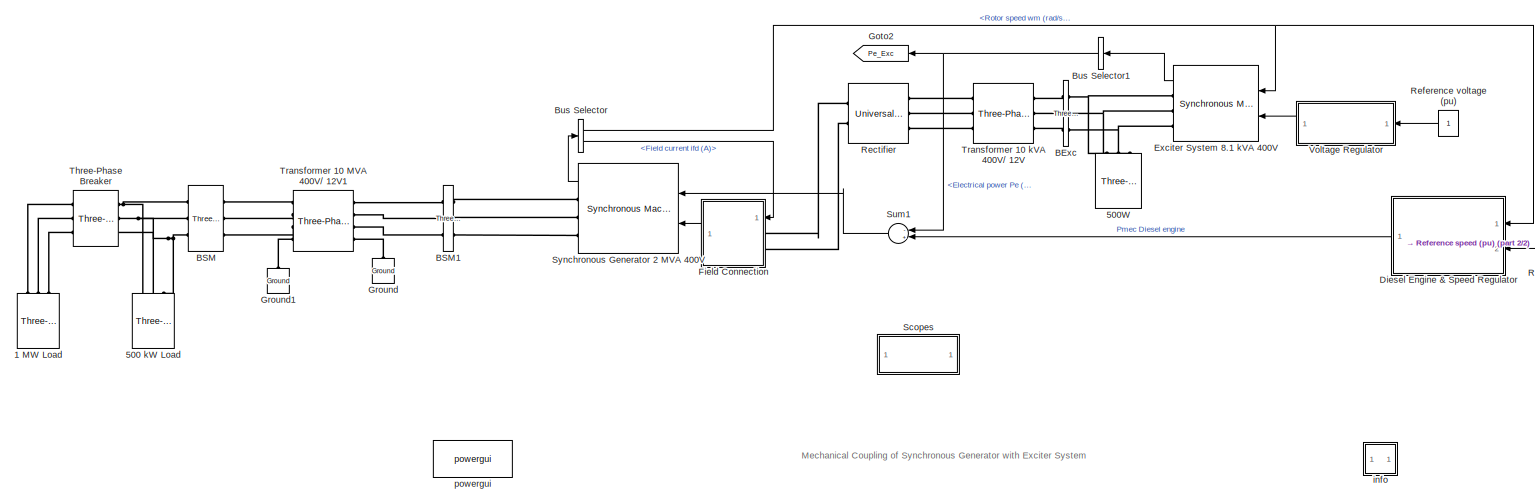
[diagram: root canvas - part 1/2, most of the canvas]
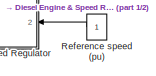
[diagram: root canvas - part 2/2, middle right region]
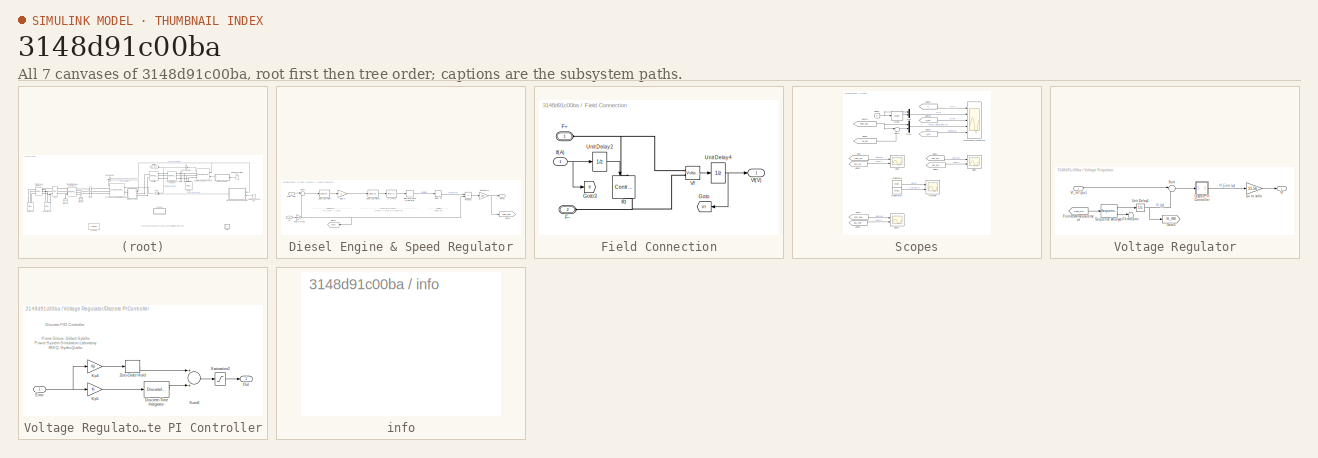
[diagram: thumbnail index - all 7 canvases of the model, root first then tree order]
MODEL slx_3148d91c00ba
KIND model
CONFIG AbsTol = auto
CONFIG FixedStep = auto
CONFIG InitFcn = Ts=50e-6;
CONFIG MaxStep = auto
CONFIG MinStep = auto
CONFIG PreLoadFcn = Ts=50e-6;
CONFIG RelTol = 1e-3
CONFIG SampleTimeConstraint = Unconstrained
CONFIG Solver = FixedStepDiscrete
CONFIG SolverMode = Auto
CONFIG SolverName = FixedStepDiscrete
CONFIG StartTime = 0.0
CONFIG StopTime = 10.0
BLOCK [Reference] 1 MW Load   REF=powerlib/Elements/Three-Phase
Parallel RLC Load
  AttributesFormatString = \n
  Ports = [0, 0, 0, 0, 0, 3]
  SourceBlock = powerlib/Elements/Three-Phase\nParallel RLC Load
  SourceType = Three-Phase Parallel RLC Load
BLOCK [Reference] 500 kW Load  REF=powerlib/Elements/Three-Phase
Parallel RLC Load
  AttributesFormatString = \n
  Ports = [0, 0, 0, 0, 0, 3]
  SourceBlock = powerlib/Elements/Three-Phase\nParallel RLC Load
  SourceType = Three-Phase Parallel RLC Load
BLOCK [Reference] 500W  REF=powerlib/Elements/Three-Phase
Parallel RLC Load
  AttributesFormatString = \n
  Ports = [0, 0, 0, 0, 0, 3]
  SourceBlock = powerlib/Elements/Three-Phase\nParallel RLC Load
  SourceType = Three-Phase Parallel RLC Load
BLOCK [Reference] BExc  REF=powerlib/Measurements/Three-Phase
V-I Measurement
  Ports = [0, 0, 0, 0, 0, 3, 3]
  SourceBlock = powerlib/Measurements/Three-Phase\nV-I Measurement
  SourceType = Three-Phase VI Measurement
BLOCK [Reference] BSM  REF=powerlib/Measurements/Three-Phase
V-I Measurement
  Ports = [0, 0, 0, 0, 0, 3, 3]
  SourceBlock = powerlib/Measurements/Three-Phase\nV-I Measurement
  SourceType = Three-Phase VI Measurement
BLOCK [Reference] BSM1  REF=powerlib/Measurements/Three-Phase
V-I Measurement
  Ports = [0, 0, 0, 0, 0, 3, 3]
  SourceBlock = powerlib/Measurements/Three-Phase\nV-I Measurement
  SourceType = Three-Phase VI Measurement
BLOCK [BusSelector] Bus Selector
  OutputSignals = Mechanical.Rotor speed  wm (rad/s),dq0 components.Field current  ifd (A)
  Ports = [1, 2]
BLOCK [BusSelector] Bus Selector1
  OutputSignals = Mechanical.Electrical power  Pe (W)
  Ports = [1, 1]
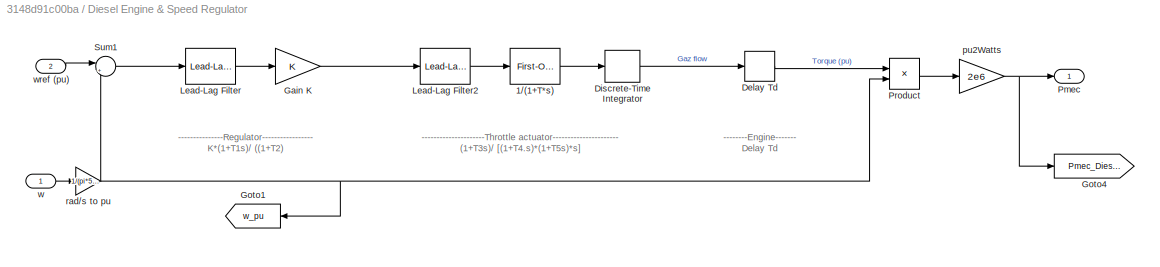
BLOCK [SubSystem] Diesel Engine & Speed Regulator
  Ports = [2, 1]
  RequestExecContextInheritance = off
  Variant = off
BLOCK [Reference] Diesel Engine & Speed Regulator/1//(1+T*s)  REF=powerlib_meascontrol/Filters/First-Order
Filter
  Ports = [1, 1]
  SourceBlock = powerlib_meascontrol/Filters/First-Order\nFilter
  SourceType = First-Order Filter
BLOCK [TransportDelay] Diesel Engine & Speed Regulator/Delay Td
  DelayTime = Td
  InitialOutput = Pm0
  Ports = [1, 1]
BLOCK [DiscreteIntegrator] Diesel Engine & Speed Regulator/Discrete-Time Integrator
  ICPrevOutput = DiscIntNeverNeededParam
  ICPrevScaledInput = DiscIntNeverNeededParam
  InitialCondition = Pm0
  LimitOutput = on
  LowerSaturationLimit = Tlim(1)
  Ports = [1, 1]
  SampleTime = Ts
  UpperSaturationLimit = Tlim(2)
BLOCK [Gain] Diesel Engine & Speed Regulator/Gain K
  Gain = K
BLOCK [Goto] Diesel Engine & Speed Regulator/Goto1
  GotoTag = w_pu
  TagVisibility = global
BLOCK [Goto] Diesel Engine & Speed Regulator/Goto4
  GotoTag = Pmec_Diesel
  TagVisibility = global
BLOCK [Reference] Diesel Engine & Speed Regulator/Lead-Lag Filter  REF=powerlib_meascontrol/Filters/Lead-Lag
Filter
  Ports = [1, 1]
  SourceBlock = powerlib_meascontrol/Filters/Lead-Lag\nFilter
  SourceType = Lead-Lag Filter
BLOCK [Reference] Diesel Engine & Speed Regulator/Lead-Lag Filter2  REF=powerlib_meascontrol/Filters/Lead-Lag
Filter
  Ports = [1, 1]
  SourceBlock = powerlib_meascontrol/Filters/Lead-Lag\nFilter
  SourceType = Lead-Lag Filter
BLOCK [Outport] Diesel Engine & Speed Regulator/Pmec
  IconDisplay = Port number
  InitialOutput = 0
BLOCK [Product] Diesel Engine & Speed Regulator/Product
  Ports = [2, 1]
  RndMeth = Floor
BLOCK [Sum] Diesel Engine & Speed Regulator/Sum1
  IconShape = round
  InputSameDT = off
  Inputs = |+-
  OutDataTypeStr = Inherit: Inherit via internal rule
  Ports = [2, 1]
BLOCK [Gain] Diesel Engine & Speed Regulator/pu2Watts
  Gain = 2e6
  OutDataTypeStr = Inherit: Inherit via internal rule
  ParamDataTypeStr = Inherit: Inherit via internal rule
  SaturateOnIntegerOverflow = off
BLOCK [Gain] Diesel Engine & Speed Regulator/rad//s to pu
  Gain = 1/(pi*50)
  OutDataTypeStr = Inherit: Inherit via internal rule
  ParamDataTypeStr = Inherit: Inherit via internal rule
  SaturateOnIntegerOverflow = off
BLOCK [Inport] Diesel Engine & Speed Regulator/w
  IconDisplay = Port number
BLOCK [Inport] Diesel Engine & Speed Regulator/wref (pu)
  IconDisplay = Port number
  Port = 2
BLOCK [Reference] Exciter System 8.1 kVA 400V  REF=powerlib/Machines/Synchronous Machine
SI Fundamental
  Ports = [2, 1, 0, 0, 0, 0, 3]
  SourceBlock = powerlib/Machines/Synchronous Machine\nSI Fundamental
  SourceType = Synchronous Machine
BLOCK [SubSystem] Field Connection
  Ports = [1, 1, 0, 0, 0, 2]
  RequestExecContextInheritance = off
  Variant = off
BLOCK [PMIOPort] Field Connection/F+
  Port = 1
  Side = Left
BLOCK [PMIOPort] Field Connection/F-
  Port = 2
  Side = Left
BLOCK [Goto] Field Connection/Goto
  GotoTag = Vf
  TagVisibility = global
BLOCK [Goto] Field Connection/Goto3
  GotoTag = If
  TagVisibility = global
BLOCK [Inport] Field Connection/If(A)
  IconDisplay = Port number
BLOCK [Reference] Field Connection/Ifd  REF=powerlib/Electrical
Sources/Controlled Current Source
  Ports = [1, 0, 0, 0, 0, 1, 1]
  SourceBlock = powerlib/Electrical\nSources/Controlled Current Source
  SourceType = Controlled Current Source
BLOCK [UnitDelay] Field Connection/Unit Delay2
  InitialCondition = 1.1254*100
  SampleTime = Ts
BLOCK [UnitDelay] Field Connection/Unit Delay4
  InitialCondition = 10.4482
  SampleTime = Ts
BLOCK [Reference] Field Connection/Vf   REF=powerlib/Measurements/Voltage Measurement
  Ports = [0, 1, 0, 0, 0, 2]
  SourceBlock = powerlib/Measurements/Voltage Measurement
  SourceType = Voltage Measurement
BLOCK [Outport] Field Connection/Vf(V)
  IconDisplay = Port number
BLOCK [Goto] Goto2
  GotoTag = Pe_Exc
  TagVisibility = global
BLOCK [Reference] Ground  REF=powerlib/Elements/Ground
  Ports = [0, 0, 0, 0, 0, 1]
  SourceBlock = powerlib/Elements/Ground
  SourceType = Ground
BLOCK [Reference] Ground1  REF=powerlib/Elements/Ground
  Ports = [0, 0, 0, 0, 0, 1]
  SourceBlock = powerlib/Elements/Ground
  SourceType = Ground
BLOCK [Reference] Rectifier  REF=powerlib/Power
Electronics/Universal Bridge
  Ports = [0, 0, 0, 0, 0, 3, 2]
  SourceBlock = powerlib/Power\nElectronics/Universal Bridge
  SourceType = Universal Bridge
BLOCK [Constant] Reference speed (pu)
BLOCK [Constant] Reference voltage (pu)
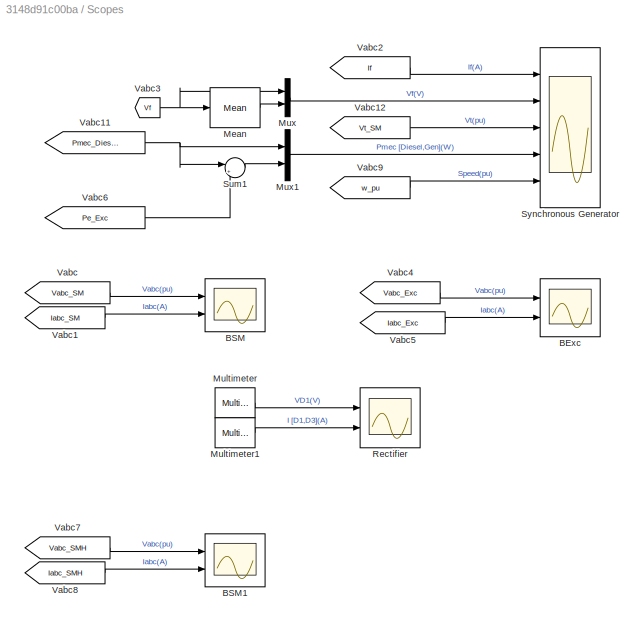
BLOCK [SubSystem] Scopes
  Ports = []
  RequestExecContextInheritance = off
  Variant = off
BLOCK [Scope] Scopes/ BSM
  NumInputPorts = 2
  Ports = [2]
  ScopeSpecificationString = Simulink.scopes.TimeScopeBlockCfg('CurrentConfiguration', extmgr.ConfigurationSet(extmgr.Configuration('Core','General UI',true),extmgr.Configuration('Core','Source UI',true),extmgr.Configuration('Sources','WiredSimulink',true,'DataLoggingSaveFormat','Array','DataLoggingDecimation','1','DataLoggingDecimateData',true),extmgr.Configuration('Visuals','Time Domain',true,'SerializedDisplays',{struct('M...<+2339ch>
BLOCK [Scope] Scopes/ BSM1
  NumInputPorts = 2
  Ports = [2]
  ScopeSpecificationString = Simulink.scopes.TimeScopeBlockCfg('CurrentConfiguration', extmgr.ConfigurationSet(extmgr.Configuration('Core','General UI',true),extmgr.Configuration('Core','Source UI',true),extmgr.Configuration('Sources','WiredSimulink',true,'DataLoggingSaveFormat','Array','DataLoggingDecimation','1','DataLoggingDecimateData',true,'DataLoggingVariableName','ScopeData1'),extmgr.Configuration('Visuals','Time Domai...<+2410ch>
BLOCK [Scope] Scopes/ Rectifier
  NumInputPorts = 2
  Ports = [2]
  ScopeSpecificationString = C++SS(StrPVP('Location','[188, 365, 512, 604]'),StrPVP('Open','off'),MxPVP('AxesTitles',24,'struct(''axes1'',''%<SignalLabel>'',''axes2'',''%<SignalLabel>'')'),StrPVP('ShowLegends','off'),StrPVP('LimitDataPoints','off'),StrPVP('DataFormat','Array'),StrPVP('Decimation','1'),StrPVP('BlockParamSampleInput','off'))
BLOCK [Scope] Scopes/BExc
  NumInputPorts = 2
  Ports = [2]
  ScopeSpecificationString = C++SS(StrPVP('Location','[188, 365, 512, 604]'),StrPVP('Open','off'),MxPVP('AxesTitles',24,'struct(''axes1'',''%<SignalLabel>'',''axes2'',''%<SignalLabel>'')'),StrPVP('ShowLegends','off'),StrPVP('LimitDataPoints','off'),StrPVP('DataFormat','Array'),StrPVP('Decimation','1'),StrPVP('BlockParamSampleInput','off'))
BLOCK [Reference] Scopes/Mean  REF=powerlib_meascontrol/Measurements/Mean
  Ports = [1, 1]
  SourceBlock = powerlib_meascontrol/Measurements/Mean
  SourceType = Mean
BLOCK [Reference] Scopes/Multimeter  REF=powerlib/Measurements/Multimeter
  Ports = [0, 1]
  SourceBlock = powerlib/Measurements/Multimeter
  SourceType = MultimeterPSB
BLOCK [Reference] Scopes/Multimeter1  REF=powerlib/Measurements/Multimeter
  Ports = [0, 1]
  SourceBlock = powerlib/Measurements/Multimeter
  SourceType = MultimeterPSB
BLOCK [Mux] Scopes/Mux
  DisplayOption = bar
  Inputs = 2
  Ports = [2, 1]
BLOCK [Mux] Scopes/Mux1
  DisplayOption = bar
  Inputs = 2
  Ports = [2, 1]
BLOCK [Sum] Scopes/Sum1
  IconShape = round
  InputSameDT = off
  Inputs = |+-
  OutDataTypeStr = Inherit: Inherit via internal rule
  Ports = [2, 1]
  SaturateOnIntegerOverflow = off
BLOCK [Scope] Scopes/Synchronous Generator
  NumInputPorts = 5
  Ports = [5]
  ScopeSpecificationString = Simulink.scopes.TimeScopeBlockCfg('CurrentConfiguration', extmgr.ConfigurationSet(extmgr.Configuration('Core','General UI',true),extmgr.Configuration('Core','Source UI',true),extmgr.Configuration('Sources','WiredSimulink',true,'DataLoggingSaveFormat','Array','DataLoggingDecimation','1','DataLoggingDecimateData',true),extmgr.Configuration('Visuals','Time Domain',true,'SerializedDisplays',{struct('M...<+6449ch>
BLOCK [From] Scopes/Vabc
  CloseFcn = tagdialog Close
  GotoTag = Vabc_SM
  TagVisibility = global
BLOCK [From] Scopes/Vabc1
  CloseFcn = tagdialog Close
  GotoTag = Iabc_SM
  TagVisibility = global
BLOCK [From] Scopes/Vabc11
  CloseFcn = tagdialog Close
  GotoTag = Pmec_Diesel
  TagVisibility = global
BLOCK [From] Scopes/Vabc12
  CloseFcn = tagdialog Close
  GotoTag = Vt_SM
  TagVisibility = global
BLOCK [From] Scopes/Vabc2
  CloseFcn = tagdialog Close
  GotoTag = If
  TagVisibility = global
BLOCK [From] Scopes/Vabc3
  CloseFcn = tagdialog Close
  GotoTag = Vf
  TagVisibility = global
BLOCK [From] Scopes/Vabc4
  CloseFcn = tagdialog Close
  GotoTag = Vabc_Exc
  TagVisibility = global
BLOCK [From] Scopes/Vabc5
  CloseFcn = tagdialog Close
  GotoTag = Iabc_Exc
  TagVisibility = global
BLOCK [From] Scopes/Vabc6
  CloseFcn = tagdialog Close
  GotoTag = Pe_Exc
  TagVisibility = global
BLOCK [From] Scopes/Vabc7
  CloseFcn = tagdialog Close
  GotoTag = Vabc_SMH
  TagVisibility = global
BLOCK [From] Scopes/Vabc8
  CloseFcn = tagdialog Close
  GotoTag = Iabc_SMH
  TagVisibility = global
BLOCK [From] Scopes/Vabc9
  CloseFcn = tagdialog Close
  GotoTag = w_pu
  TagVisibility = global
BLOCK [Sum] Sum1
  InputSameDT = off
  Inputs = -+
  OutDataTypeStr = Inherit: Inherit via internal rule
  Ports = [2, 1]
  SaturateOnIntegerOverflow = off
BLOCK [Reference] Synchronous Generator 2 MVA 400V  REF=powerlib/Machines/Synchronous Machine
SI Fundamental
  Ports = [2, 1, 0, 0, 0, 0, 3]
  SourceBlock = powerlib/Machines/Synchronous Machine\nSI Fundamental
  SourceType = Synchronous Machine
BLOCK [Reference] Three-Phase Breaker  REF=powerlib/Elements/Three-Phase Breaker
  Ports = [0, 0, 0, 0, 0, 3, 3]
  SourceBlock = powerlib/Elements/Three-Phase Breaker
  SourceType = Three-Phase Breaker
BLOCK [Reference] Transformer 10 MVA 400V// 12V1  REF=powerlib/Elements/Three-Phase
Transformer
(Two Windings)
  Ports = [0, 0, 0, 0, 0, 4, 4]
  SourceBlock = powerlib/Elements/Three-Phase\nTransformer\n(Two Windings)
  SourceType = Three-Phase Transformer (Two Windings)
BLOCK [Reference] Transformer 10 kVA 400V// 12V  REF=powerlib/Elements/Three-Phase
Transformer
(Two Windings)
  Ports = [0, 0, 0, 0, 0, 3, 3]
  SourceBlock = powerlib/Elements/Three-Phase\nTransformer\n(Two Windings)
  SourceType = Three-Phase Transformer (Two Windings)
BLOCK [SubSystem] Voltage Regulator
  Ports = [1, 1]
  RequestExecContextInheritance = off
  Variant = off
BLOCK [SubSystem] Voltage Regulator/Discrete PI Controller
  DialogController = POWERSYS.PowerSysDialog
  Ports = [1, 1]
  RequestExecContextInheritance = off
  Variant = off
BLOCK [DiscreteIntegrator] Voltage Regulator/Discrete PI Controller/Discrete-Time Integrator
  ICPrevOutput = DiscIntNeverNeededParam
  ICPrevScaledInput = DiscIntNeverNeededParam
  InitialCondition = Init
  LimitOutput = on
  LowerSaturationLimit = LowerLimit
  Ports = [1, 1]
  SampleTime = Ts
  UpperSaturationLimit = UpperLimit
BLOCK [Inport] Voltage Regulator/Discrete PI Controller/Error
  IconDisplay = Port number
  SampleTime = Ts
BLOCK [Gain] Voltage Regulator/Discrete PI Controller/Kp4
  Gain = Kp
  SampleTime = Ts
BLOCK [Gain] Voltage Regulator/Discrete PI Controller/Kp5
  Gain = Ki
  SampleTime = Ts
BLOCK [Outport] Voltage Regulator/Discrete PI Controller/Out
  IconDisplay = Port number
  InitialOutput = 0
  SampleTime = Ts
BLOCK [Saturate] Voltage Regulator/Discrete PI Controller/Saturation2
  InputPortMap = u0
  LowerLimit = LowerLimit
  Ports = [1, 1]
  SampleTime = Ts
  UpperLimit = UpperLimit
BLOCK [Sum] Voltage Regulator/Discrete PI Controller/Sum6
  Ports = [2, 1]
  SampleTime = Ts
BLOCK [ZeroOrderHold] Voltage Regulator/Discrete PI Controller/Zero-Order Hold
  SampleTime = Ts
BLOCK [From] Voltage Regulator/From BSM measurement
  CloseFcn = tagdialog Close
  GotoTag = Vabc_SM
  TagVisibility = global
BLOCK [Goto] Voltage Regulator/Goto3
  GotoTag = Vt_SM
  TagVisibility = global
BLOCK [Reference] Voltage Regulator/Sequence Analyzer  REF=powerlib_meascontrol/Measurements/Sequence Analyzer
  Ports = [1, 2]
  SourceBlock = powerlib_meascontrol/Measurements/Sequence Analyzer
  SourceType = Sequence Analyzer
BLOCK [Sum] Voltage Regulator/Sum
  IconShape = round
  InputSameDT = off
  Inputs = |+-
  OutDataTypeStr = Inherit: Inherit via internal rule
  Ports = [2, 1]
  SaturateOnIntegerOverflow = off
BLOCK [Terminator] Voltage Regulator/Terminator
BLOCK [UnitDelay] Voltage Regulator/Unit Delay1
  InitialCondition = 1
  SampleTime = Ts
BLOCK [Outport] Voltage Regulator/Vf
  IconDisplay = Port number
BLOCK [Inport] Voltage Regulator/Vt_ref (pu)
  IconDisplay = Port number
BLOCK [Gain] Voltage Regulator/pu to volts
  Gain = 11.56
  OutDataTypeStr = Inherit: Inherit via internal rule
  ParamDataTypeStr = Inherit: Inherit via internal rule
  SaturateOnIntegerOverflow = off
BLOCK [SubSystem] info
  OpenFcn = showdemo(bdroot(gcb))
  Ports = []
  RequestExecContextInheritance = off
  Variant = off
BLOCK [Reference] powergui  REF=powerlib/powergui
  Ports = []
  SourceBlock = powerlib/powergui
  SourceType = PSB option menu block
  UserDataPersistent = on
ANNOTATION (root): Mechanical Coupling of Synchronous Generator with Exciter System
ANNOTATION Diesel Engine & Speed Regulator: ---------------------Throttle actuator---------------------- (1+T3s)/ [(1+T4.s)*(1+T5s)*s]
ANNOTATION Diesel Engine & Speed Regulator: ---------------Regulator----------------- K*(1+T1s)/ ((1+T2)
ANNOTATION Diesel Engine & Speed Regulator: --------Engine------- Delay Td
ANNOTATION Voltage Regulator/Discrete PI Controller: Discrete PID Controller
ANNOTATION Voltage Regulator/Discrete PI Controller: Pierre Giroux, Gilbert Sybille Power System Simulation Laboratory IREQ, Hydro-Quebc
NET Bus Selector1:1 -> Goto2:1, Sum1:1
NET Bus Selector:1 -> Diesel Engine & Speed Regulator:1, Exciter System 8.1 kVA 400V:1
LINE Bus Selector:2 -> Field Connection:1
LINE Diesel Engine & Speed Regulator/1//(1+T*s):1 -> Diesel Engine & Speed Regulator/Discrete-Time Integrator:1
LINE Diesel Engine & Speed Regulator/Delay Td:1 -> Diesel Engine & Speed Regulator/Product:1
LINE Diesel Engine & Speed Regulator/Discrete-Time Integrator:1 -> Diesel Engine & Speed Regulator/Delay Td:1
LINE Diesel Engine & Speed Regulator/Gain K:1 -> Diesel Engine & Speed Regulator/Lead-Lag Filter2:1
LINE Diesel Engine & Speed Regulator/Lead-Lag Filter2:1 -> Diesel Engine & Speed Regulator/1//(1+T*s):1
LINE Diesel Engine & Speed Regulator/Lead-Lag Filter:1 -> Diesel Engine & Speed Regulator/Gain K:1
LINE Diesel Engine & Speed Regulator/Product:1 -> Diesel Engine & Speed Regulator/pu2Watts:1
LINE Diesel Engine & Speed Regulator/Sum1:1 -> Diesel Engine & Speed Regulator/Lead-Lag Filter:1
NET Diesel Engine & Speed Regulator/pu2Watts:1 -> Diesel Engine & Speed Regulator/Goto4:1, Diesel Engine & Speed Regulator/Pmec:1
NET Diesel Engine & Speed Regulator/rad//s to pu:1 -> Diesel Engine & Speed Regulator/Goto1:1, Diesel Engine & Speed Regulator/Product:2, Diesel Engine & Speed Regulator/Sum1:2
LINE Diesel Engine & Speed Regulator/w:1 -> Diesel Engine & Speed Regulator/rad//s to pu:1
LINE Diesel Engine & Speed Regulator/wref (pu):1 -> Diesel Engine & Speed Regulator/Sum1:1
LINE Diesel Engine & Speed Regulator:1 -> Sum1:2
LINE Exciter System 8.1 kVA 400V:1 -> Bus Selector1:1
NET Field Connection/If(A):1 -> Field Connection/Goto3:1, Field Connection/Unit Delay2:1
LINE Field Connection/Unit Delay2:1 -> Field Connection/Ifd:1
NET Field Connection/Unit Delay4:1 -> Field Connection/Goto:1, Field Connection/Vf(V):1
LINE Field Connection/Vf :1 -> Field Connection/Unit Delay4:1
LINE Field Connection:1 -> Synchronous Generator 2 MVA 400V:2
LINE Reference speed (pu):1 -> Diesel Engine & Speed Regulator:2
LINE Reference voltage (pu):1 -> Voltage Regulator:1
LINE Scopes/Mean:1 -> Scopes/Mux:2
LINE Scopes/Multimeter1:1 -> Scopes/ Rectifier:2
LINE Scopes/Multimeter:1 -> Scopes/ Rectifier:1
LINE Scopes/Mux1:1 -> Scopes/Synchronous Generator:4
LINE Scopes/Mux:1 -> Scopes/Synchronous Generator:2
LINE Scopes/Sum1:1 -> Scopes/Mux1:2
NET Scopes/Vabc11:1 -> Scopes/Mux1:1, Scopes/Sum1:1
LINE Scopes/Vabc12:1 -> Scopes/Synchronous Generator:3
LINE Scopes/Vabc1:1 -> Scopes/ BSM:2
LINE Scopes/Vabc2:1 -> Scopes/Synchronous Generator:1
NET Scopes/Vabc3:1 -> Scopes/Mean:1, Scopes/Mux:1
LINE Scopes/Vabc4:1 -> Scopes/BExc:1
LINE Scopes/Vabc5:1 -> Scopes/BExc:2
LINE Scopes/Vabc6:1 -> Scopes/Sum1:2
LINE Scopes/Vabc7:1 -> Scopes/ BSM1:1
LINE Scopes/Vabc8:1 -> Scopes/ BSM1:2
LINE Scopes/Vabc9:1 -> Scopes/Synchronous Generator:5
LINE Scopes/Vabc:1 -> Scopes/ BSM:1
LINE Sum1:1 -> Synchronous Generator 2 MVA 400V:1
LINE Synchronous Generator 2 MVA 400V:1 -> Bus Selector:1
LINE Voltage Regulator/Discrete PI Controller:1 -> Voltage Regulator/pu to volts:1
LINE Voltage Regulator/From BSM measurement:1 -> Voltage Regulator/Sequence Analyzer:1
LINE Voltage Regulator/Sequence Analyzer:1 -> Voltage Regulator/Unit Delay1:1
LINE Voltage Regulator/Sequence Analyzer:2 -> Voltage Regulator/Terminator:1
LINE Voltage Regulator/Sum:1 -> Voltage Regulator/Discrete PI Controller:1
NET Voltage Regulator/Unit Delay1:1 -> Voltage Regulator/Goto3:1, Voltage Regulator/Sum:2
LINE Voltage Regulator/Vt_ref (pu):1 -> Voltage Regulator/Sum:1
LINE Voltage Regulator/pu to volts:1 -> Voltage Regulator/Vf:1
LINE Voltage Regulator:1 -> Exciter System 8.1 kVA 400V:2
PLINE 1 MW Load :LConn1 -- Three-Phase Breaker:LConn1
PLINE 1 MW Load :LConn2 -- Three-Phase Breaker:LConn2
PLINE 1 MW Load :LConn3 -- Three-Phase Breaker:LConn3
PNET net1: 500 kW Load:LConn1 -- BSM:RConn1 -- Three-Phase Breaker:RConn1
PNET net2: 500 kW Load:LConn2 -- BSM:RConn2 -- Three-Phase Breaker:RConn2
PNET net3: 500 kW Load:LConn3 -- BSM:RConn3 -- Three-Phase Breaker:RConn3
PNET net4: 500W:LConn1 -- BExc:LConn1 -- Exciter System 8.1 kVA 400V:RConn1
PNET net5: 500W:LConn2 -- BExc:LConn2 -- Exciter System 8.1 kVA 400V:RConn2
PNET net6: 500W:LConn3 -- BExc:LConn3 -- Exciter System 8.1 kVA 400V:RConn3
PLINE BExc:RConn1 -- Transformer 10 kVA 400V// 12V:LConn1
PLINE BExc:RConn2 -- Transformer 10 kVA 400V// 12V:LConn2
PLINE BExc:RConn3 -- Transformer 10 kVA 400V// 12V:LConn3
PLINE BSM1:LConn1 -- Synchronous Generator 2 MVA 400V:RConn1
PLINE BSM1:LConn2 -- Synchronous Generator 2 MVA 400V:RConn2
PLINE BSM1:LConn3 -- Synchronous Generator 2 MVA 400V:RConn3
PLINE BSM1:RConn1 -- Transformer 10 MVA 400V// 12V1:RConn1
PLINE BSM1:RConn2 -- Transformer 10 MVA 400V// 12V1:RConn2
PLINE BSM1:RConn3 -- Transformer 10 MVA 400V// 12V1:RConn3
PLINE BSM:LConn1 -- Transformer 10 MVA 400V// 12V1:LConn1
PLINE BSM:LConn2 -- Transformer 10 MVA 400V// 12V1:LConn2
PLINE BSM:LConn3 -- Transformer 10 MVA 400V// 12V1:LConn3
PNET net7: Field Connection/F+:RConn1 -- Field Connection/Ifd:LConn1 -- Field Connection/Vf :LConn1
PNET net8: Field Connection/F-:RConn1 -- Field Connection/Ifd:RConn1 -- Field Connection/Vf :LConn2
PLINE Field Connection:LConn1 -- Rectifier:RConn1
PLINE Field Connection:LConn2 -- Rectifier:RConn2
PLINE Ground1:LConn1 -- Transformer 10 MVA 400V// 12V1:LConn4
PLINE Ground:LConn1 -- Transformer 10 MVA 400V// 12V1:RConn4
PLINE Rectifier:LConn1 -- Transformer 10 kVA 400V// 12V:RConn1
PLINE Rectifier:LConn2 -- Transformer 10 kVA 400V// 12V:RConn2
PLINE Rectifier:LConn3 -- Transformer 10 kVA 400V// 12V:RConn3
note: NET lines group one-source signal fan-out (src -> all destinations, sorted); 1:1 wires keep LINE; PNET lines group multi-terminal physical nets as a canonical sorted terminal list (undirected conserving connections); 2-terminal nets keep the pairwise PLINE form
